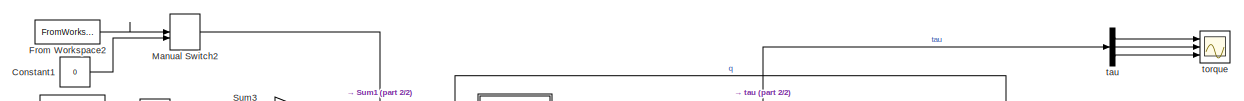
[diagram: root canvas - part 1/2, full width, top band]
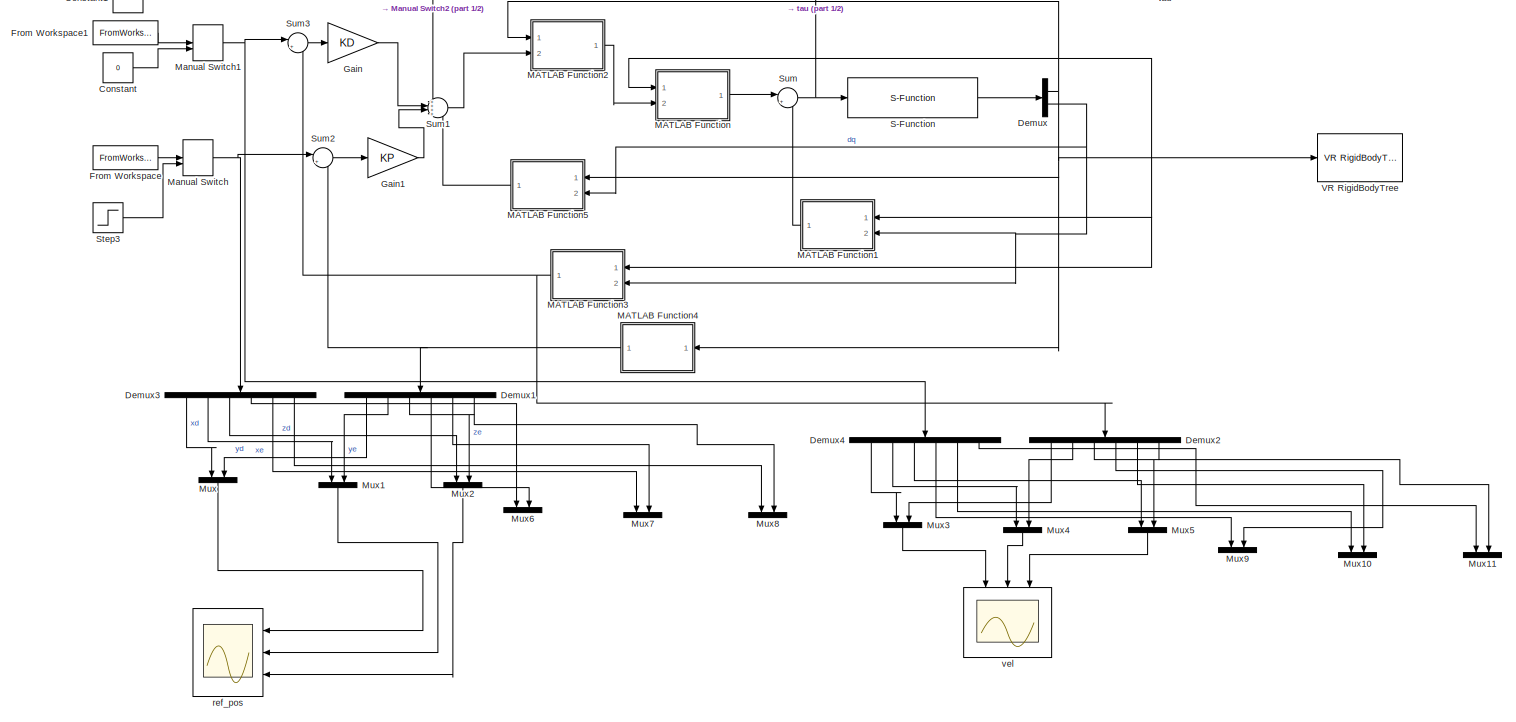
[diagram: root canvas - part 2/2, most of the canvas]
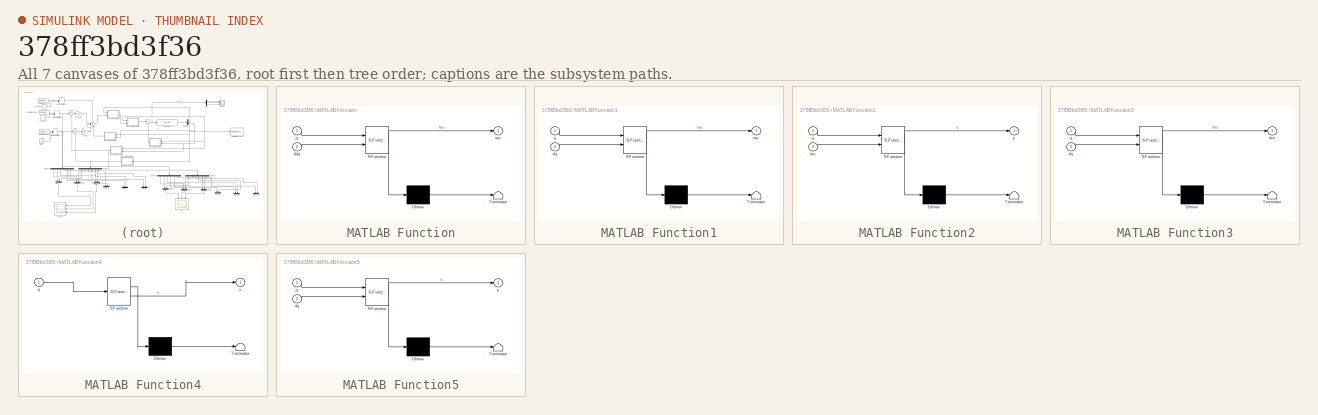
[diagram: thumbnail index - all 7 canvases of the model, root first then tree order]
MODEL slx_378ff3bd3f36
KIND model
CONFIG AbsTol = auto
CONFIG EnableMultiTasking = off
CONFIG FixedStep = Ts
CONFIG MaxStep = auto
CONFIG MinStep = auto
CONFIG RelTol = 1e-3
CONFIG SampleTimeConstraint = Unconstrained
CONFIG SolverName = FixedStepAuto
CONFIG StartTime = 0.0
CONFIG StopTime = 10
BLOCK [Constant] Constant
  Value = 0
BLOCK [Constant] Constant1
  Value = 0
BLOCK [Demux] Demux
  Outputs = 2
  Ports = [1, 2]
BLOCK [Demux] Demux1
  NameLocation = left
  Outputs = 6
  Ports = [1, 6]
BLOCK [Demux] Demux2
  NameLocation = left
  Outputs = 6
  Ports = [1, 6]
BLOCK [Demux] Demux3
  NameLocation = left
  Outputs = 6
  Ports = [1, 6]
BLOCK [Demux] Demux4
  NameLocation = left
  Outputs = 6
  Ports = [1, 6]
BLOCK [FromWorkspace] From Workspace
  VariableName = xd
BLOCK [FromWorkspace] From Workspace1
  VariableName = dxd
BLOCK [FromWorkspace] From Workspace2
  VariableName = ddxd
BLOCK [Gain] Gain
  Gain = KD
BLOCK [Gain] Gain1
  Gain = KP
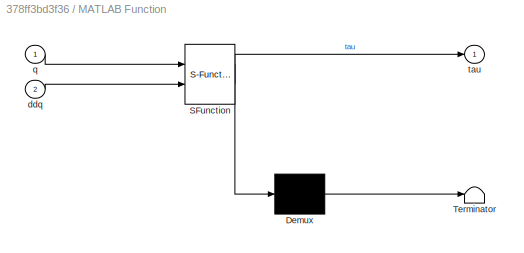
BLOCK [SubSystem] MATLAB Function
  ErrorFcn = Stateflow.Translate.translate
  PermitHierarchicalResolution = ExplicitOnly
  Ports = [2, 1]
  RequestExecContextInheritance = off
  SFBlockType = MATLAB Function
  TreatAsAtomicUnit = on
BLOCK [Demux] MATLAB Function/ Demux 
  Outputs = 1
  Ports = [1, 1]
BLOCK [S-Function] MATLAB Function/ SFunction 
  EnableBusSupport = on
  FunctionName = sf_sfun
  PortCounts = [2 2]
  Ports = [2, 2]
  SFcnIsStateOwnerBlock = off
  SFunctionDeploymentMode = off
  Tag = Stateflow S-Function 2
BLOCK [Terminator] MATLAB Function/ Terminator 
BLOCK [Inport] MATLAB Function/ddq
  Port = 2
BLOCK [Inport] MATLAB Function/q
BLOCK [Outport] MATLAB Function/tau
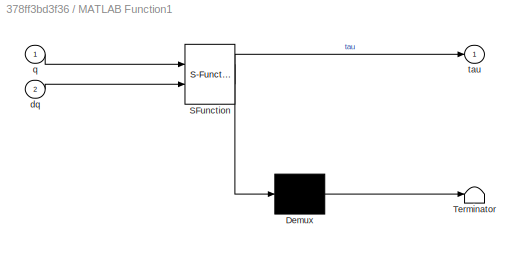
BLOCK [SubSystem] MATLAB Function1
  ErrorFcn = Stateflow.Translate.translate
  PermitHierarchicalResolution = ExplicitOnly
  Ports = [2, 1]
  RequestExecContextInheritance = off
  SFBlockType = MATLAB Function
  TreatAsAtomicUnit = on
BLOCK [Demux] MATLAB Function1/ Demux 
  Outputs = 1
  Ports = [1, 1]
BLOCK [S-Function] MATLAB Function1/ SFunction 
  EnableBusSupport = on
  FunctionName = sf_sfun
  PortCounts = [2 2]
  Ports = [2, 2]
  SFcnIsStateOwnerBlock = off
  SFunctionDeploymentMode = off
  Tag = Stateflow S-Function 1
BLOCK [Terminator] MATLAB Function1/ Terminator 
BLOCK [Inport] MATLAB Function1/dq
  Port = 2
BLOCK [Inport] MATLAB Function1/q
BLOCK [Outport] MATLAB Function1/tau
BLOCK [SubSystem] MATLAB Function2
  ErrorFcn = Stateflow.Translate.translate
  PermitHierarchicalResolution = ExplicitOnly
  Ports = [2, 1]
  RequestExecContextInheritance = off
  SFBlockType = MATLAB Function
  TreatAsAtomicUnit = on
BLOCK [Demux] MATLAB Function2/ Demux 
  Outputs = 1
  Ports = [1, 1]
BLOCK [S-Function] MATLAB Function2/ SFunction 
  EnableBusSupport = on
  FunctionName = sf_sfun
  PortCounts = [2 2]
  Ports = [2, 2]
  SFcnIsStateOwnerBlock = off
  SFunctionDeploymentMode = off
  Tag = Stateflow S-Function 3
BLOCK [Terminator] MATLAB Function2/ Terminator 
BLOCK [Inport] MATLAB Function2/q
BLOCK [Inport] MATLAB Function2/tau
  Port = 2
BLOCK [Outport] MATLAB Function2/y
BLOCK [SubSystem] MATLAB Function3
  ErrorFcn = Stateflow.Translate.translate
  PermitHierarchicalResolution = ExplicitOnly
  Ports = [2, 1]
  RequestExecContextInheritance = off
  SFBlockType = MATLAB Function
  TreatAsAtomicUnit = on
BLOCK [Demux] MATLAB Function3/ Demux 
  Outputs = 1
  Ports = [1, 1]
BLOCK [S-Function] MATLAB Function3/ SFunction 
  EnableBusSupport = on
  FunctionName = sf_sfun
  PortCounts = [2 2]
  Ports = [2, 2]
  SFcnIsStateOwnerBlock = off
  SFunctionDeploymentMode = off
  Tag = Stateflow S-Function 4
BLOCK [Terminator] MATLAB Function3/ Terminator 
BLOCK [Inport] MATLAB Function3/dq
  Port = 2
BLOCK [Outport] MATLAB Function3/dxe
BLOCK [Inport] MATLAB Function3/q
BLOCK [SubSystem] MATLAB Function4
  ErrorFcn = Stateflow.Translate.translate
  PermitHierarchicalResolution = ExplicitOnly
  Ports = [1, 1]
  RequestExecContextInheritance = off
  SFBlockType = MATLAB Function
  TreatAsAtomicUnit = on
BLOCK [Demux] MATLAB Function4/ Demux 
  Outputs = 1
  Ports = [1, 1]
BLOCK [S-Function] MATLAB Function4/ SFunction 
  EnableBusSupport = on
  FunctionName = sf_sfun
  PortCounts = [1 2]
  Ports = [1, 2]
  SFcnIsStateOwnerBlock = off
  SFunctionDeploymentMode = off
  Tag = Stateflow S-Function 5
BLOCK [Terminator] MATLAB Function4/ Terminator 
BLOCK [Inport] MATLAB Function4/q
BLOCK [Outport] MATLAB Function4/x
BLOCK [SubSystem] MATLAB Function5
  ErrorFcn = Stateflow.Translate.translate
  PermitHierarchicalResolution = ExplicitOnly
  Ports = [2, 1]
  RequestExecContextInheritance = off
  SFBlockType = MATLAB Function
  TreatAsAtomicUnit = on
BLOCK [Demux] MATLAB Function5/ Demux 
  Outputs = 1
  Ports = [1, 1]
BLOCK [S-Function] MATLAB Function5/ SFunction 
  EnableBusSupport = on
  FunctionName = sf_sfun
  PortCounts = [2 2]
  Ports = [2, 2]
  SFcnIsStateOwnerBlock = off
  SFunctionDeploymentMode = off
  Tag = Stateflow S-Function 6
BLOCK [Terminator] MATLAB Function5/ Terminator 
BLOCK [Inport] MATLAB Function5/dq
  Port = 2
BLOCK [Inport] MATLAB Function5/q
BLOCK [Outport] MATLAB Function5/y
BLOCK [ManualSwitch] Manual Switch
BLOCK [ManualSwitch] Manual Switch1
BLOCK [ManualSwitch] Manual Switch2
BLOCK [Mux] Mux
  DisplayOption = bar
  Inputs = 2
  NameLocation = left
  Ports = [2, 1]
BLOCK [Mux] Mux1
  DisplayOption = bar
  Inputs = 2
  NameLocation = left
  Ports = [2, 1]
BLOCK [Mux] Mux10
  DisplayOption = bar
  Inputs = 2
  NameLocation = left
  Ports = [2, 1]
BLOCK [Mux] Mux11
  DisplayOption = bar
  Inputs = 2
  NameLocation = left
  Ports = [2, 1]
BLOCK [Mux] Mux2
  DisplayOption = bar
  Inputs = 2
  NameLocation = left
  Ports = [2, 1]
BLOCK [Mux] Mux3
  DisplayOption = bar
  Inputs = 2
  NameLocation = left
  Ports = [2, 1]
BLOCK [Mux] Mux4
  DisplayOption = bar
  Inputs = 2
  NameLocation = left
  Ports = [2, 1]
BLOCK [Mux] Mux5
  DisplayOption = bar
  Inputs = 2
  NameLocation = left
  Ports = [2, 1]
BLOCK [Mux] Mux6
  DisplayOption = bar
  Inputs = 2
  NameLocation = left
  Ports = [2, 1]
BLOCK [Mux] Mux7
  DisplayOption = bar
  Inputs = 2
  NameLocation = left
  Ports = [2, 1]
BLOCK [Mux] Mux8
  DisplayOption = bar
  Inputs = 2
  NameLocation = left
  Ports = [2, 1]
BLOCK [Mux] Mux9
  DisplayOption = bar
  Inputs = 2
  NameLocation = left
  Ports = [2, 1]
BLOCK [S-Function] S-Function
  EnableBusSupport = off
  FunctionName = fwd_dyn_joint_lagrangian
  Parameters = myRobot,qi,dqi
  Ports = [1, 1]
  SFcnIsStateOwnerBlock = off
  SFunctionDeploymentMode = off
BLOCK [Step] Step3
  After = xf
  Before = xi
  SampleTime = 0
BLOCK [Sum] Sum
  Inputs = |++
  Ports = [2, 1]
BLOCK [Sum] Sum1
  Inputs = ++++
  Ports = [4, 1]
BLOCK [Sum] Sum2
  Inputs = |+-
  Ports = [2, 1]
BLOCK [Sum] Sum3
  Inputs = |+-
  Ports = [2, 1]
BLOCK [Reference] VR RigidBodyTree  REF=vrlib/VR RigidBodyTree
  Commented = on
  Ports = [1]
  SourceBlock = vrlib/VR RigidBodyTree
  SourceProductBaseCode = SL
  SourceType = VR RigidBodyTree
BLOCK [Scope] ref_pos
  Floating = off
  NameLocation = top
  NumInputPorts = 3
  Ports = [3]
  ScopeSpecificationString = Simulink.scopes.TimeScopeBlockCfg('CurrentConfiguration', extmgr.ConfigurationSet(extmgr.Configuration('Core','General UI',true),extmgr.Configuration('Core','Source UI',true),extmgr.Configuration('Sources','WiredSimulink',true,'DataLoggingVariableName','ScopeData1'),extmgr.Configuration('Visuals','Time Domain',true,'SerializedDisplays',{struct('MinYLimReal','-0.35625','MaxYLimReal','0.20625','YLab...<+3352ch>
BLOCK [Demux] tau
  Outputs = 3
  Ports = [1, 3]
BLOCK [Scope] torque
  Floating = off
  NumInputPorts = 3
  Ports = [3]
  ScopeSpecificationString = Simulink.scopes.TimeScopeBlockCfg('CurrentConfiguration', extmgr.ConfigurationSet(extmgr.Configuration('Core','General UI',true),extmgr.Configuration('Core','Source UI',true),extmgr.Configuration('Sources','WiredSimulink',true,'DataLoggingVariableName','ScopeData1'),extmgr.Configuration('Visuals','Time Domain',true,'SerializedDisplays',{struct('MinYLimReal','-0.0236','MaxYLimReal','0.01902','YLabe...<+2936ch>
BLOCK [Scope] vel
  Floating = off
  NameLocation = left
  NumInputPorts = 3
  Ports = [3]
  ScopeSpecificationString = Simulink.scopes.TimeScopeBlockCfg('CurrentConfiguration', extmgr.ConfigurationSet(extmgr.Configuration('Core','General UI',true),extmgr.Configuration('Core','Source UI',true),extmgr.Configuration('Sources','WiredSimulink',true),extmgr.Configuration('Visuals','Time Domain',true,'SerializedDisplays',{struct('MinYLimReal','-0.08437','MaxYLimReal','0.00937','YLabelReal','','MinYLimMag','0.00000','MaxY...<+2790ch>
LINE Constant1:1 -> Manual Switch2:2
LINE Constant:1 -> Manual Switch1:2
LINE Demux1:1 -> Mux:2
LINE Demux1:2 -> Mux1:2
LINE Demux1:3 -> Mux2:2
LINE Demux1:4 -> Mux6:2
LINE Demux1:5 -> Mux7:2
LINE Demux1:6 -> Mux8:2
LINE Demux2:1 -> Mux3:2
LINE Demux2:2 -> Mux4:2
LINE Demux2:3 -> Mux5:2
LINE Demux2:4 -> Mux9:2
LINE Demux2:5 -> Mux10:2
LINE Demux2:6 -> Mux11:2
LINE Demux3:1 -> Mux:1
LINE Demux3:2 -> Mux1:1
LINE Demux3:3 -> Mux2:1
LINE Demux3:4 -> Mux6:1
LINE Demux3:5 -> Mux7:1
LINE Demux3:6 -> Mux8:1
LINE Demux4:1 -> Mux3:1
LINE Demux4:2 -> Mux4:1
LINE Demux4:3 -> Mux5:1
LINE Demux4:4 -> Mux9:1
LINE Demux4:5 -> Mux10:1
LINE Demux4:6 -> Mux11:1
NET Demux:1 -> MATLAB Function1:1, MATLAB Function2:1, MATLAB Function3:1, MATLAB Function4:1, MATLAB Function5:1, MATLAB Function:1, VR RigidBodyTree:1
NET Demux:2 -> MATLAB Function1:2, MATLAB Function3:2, MATLAB Function5:2
LINE From Workspace1:1 -> Manual Switch1:1
LINE From Workspace2:1 -> Manual Switch2:1
LINE From Workspace:1 -> Manual Switch:1
LINE Gain1:1 -> Sum1:3
LINE Gain:1 -> Sum1:2
LINE MATLAB Function1:1 -> Sum:2
LINE MATLAB Function2:1 -> MATLAB Function:2
NET MATLAB Function3:1 -> Demux2:1, Sum3:2
NET MATLAB Function4:1 -> Demux1:1, Sum2:2
LINE MATLAB Function5:1 -> Sum1:4
LINE MATLAB Function:1 -> Sum:1
NET Manual Switch1:1 -> Demux4:1, Sum3:1
LINE Manual Switch2:1 -> Sum1:1
NET Manual Switch:1 -> Demux3:1, Sum2:1
LINE Mux1:1 -> ref_pos:2
LINE Mux2:1 -> ref_pos:3
LINE Mux3:1 -> vel:1
LINE Mux4:1 -> vel:2
LINE Mux5:1 -> vel:3
LINE Mux:1 -> ref_pos:1
LINE S-Function:1 -> Demux:1
LINE Step3:1 -> Manual Switch:2
LINE Sum1:1 -> MATLAB Function2:2
LINE Sum2:1 -> Gain1:1
LINE Sum3:1 -> Gain:1
NET Sum:1 -> S-Function:1, tau:1
LINE tau:1 -> torque:1
LINE tau:2 -> torque:2
LINE tau:3 -> torque:3
note: NET lines group one-source signal fan-out (src -> all destinations, sorted); 1:1 wires keep LINE
CHART MATLAB Function states=1 transitions=1
  STATE_LABEL 'eML_blk_kernel()'
  STATE_LABEL 'SCRIPT:\nfunction tau = B(q, ddq)\n\ntau = getB(q)*ddq;\n'
CHART MATLAB Function2 states=1 transitions=1
  STATE_LABEL 'eML_blk_kernel()'
  STATE_LABEL 'SCRIPT:\nfunction y = invJa(q, tau)\n\ny = getInvJa(q)*tau;\n'
CHART MATLAB Function3 states=1 transitions=1
  STATE_LABEL 'eML_blk_kernel()'
  STATE_LABEL 'SCRIPT:\nfunction dxe = Ja(q, dq)\n\ndxe = getJa(q)*dq;\n'
CHART MATLAB Function4 states=1 transitions=1
  STATE_LABEL 'eML_blk_kernel()'
  STATE_LABEL 'SCRIPT:\nfunction x = k(q)\n\nx = getK(q);\n'
CHART MATLAB Function5 states=1 transitions=1
  STATE_LABEL 'eML_blk_kernel()'
  STATE_LABEL 'SCRIPT:\nfunction y = dJa(q, dq)\n\ny = getDiffJa(q,dq)*dq;\n'
CHART MATLAB Function1 states=1 transitions=1
  STATE_LABEL 'eML_blk_kernel()'
  STATE_LABEL 'SCRIPT:\nfunction tau = n(q, dq)\n\ntau = getN(q, dq);\n'
CHART  states=0 transitions=0
CHART  states=0 transitions=0
CHART  states=0 transitions=0
CHART  states=0 transitions=0
CHART  states=0 transitions=0
CHART  states=0 transitions=0
